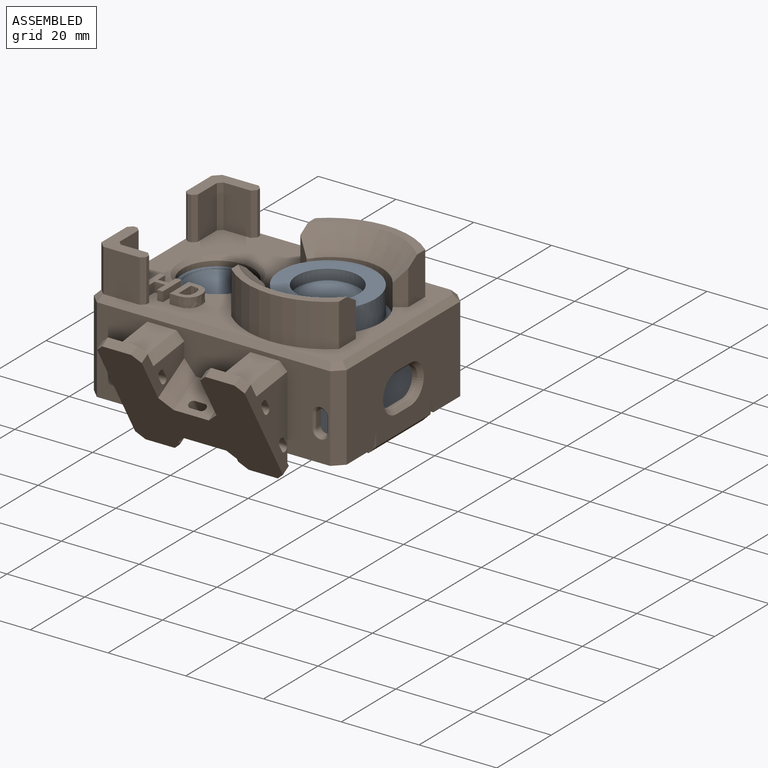
[diagram: assembled view]
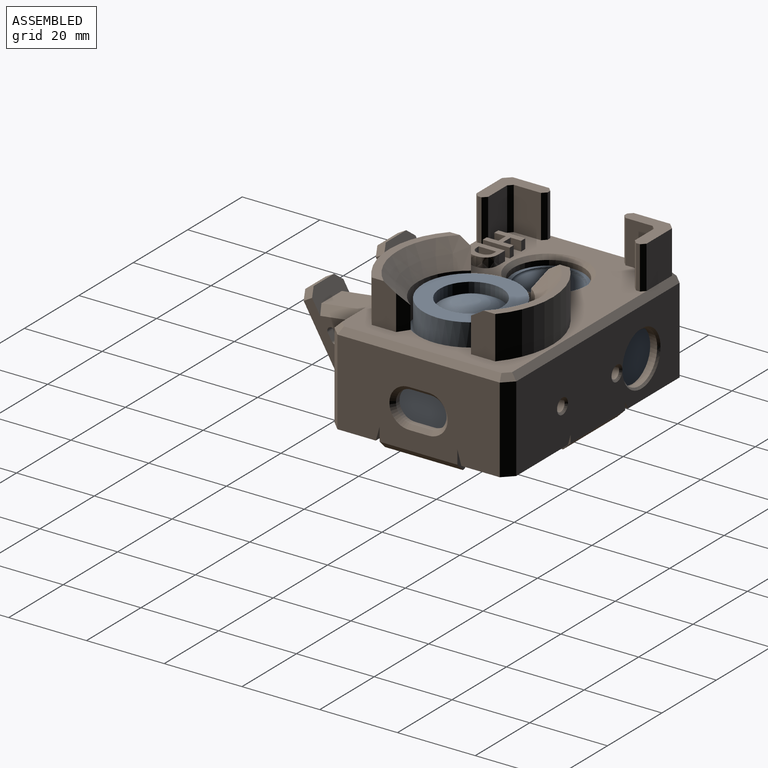
[diagram: assembled view, second angle]
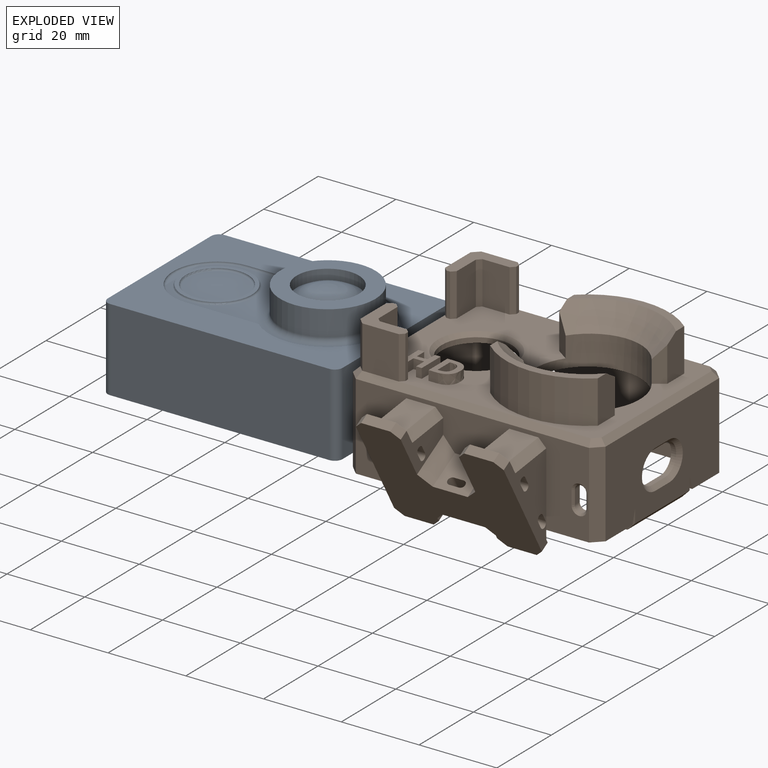
[diagram: exploded view]
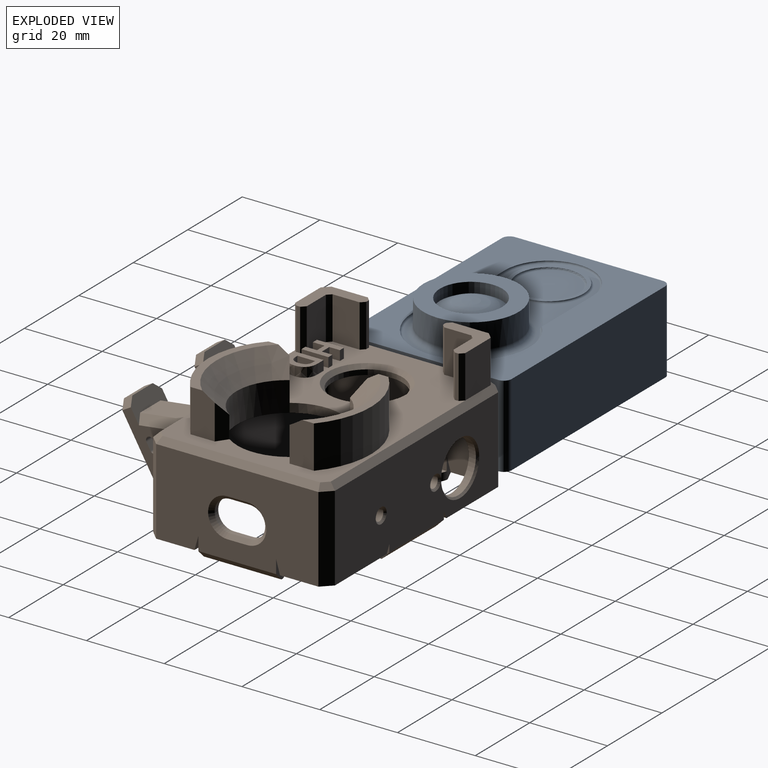
[diagram: exploded view, second angle]
ASSEMBLY  parts=2 mates=3
PART A: 26 faces, bbox 60.4x28.7x42 mm
  f0: plane 60.4x42mm, normal (0,-1,0), area 1288.9mm2, adj f1,f2,f3,f4,f6,f7,f8,f9
  f1: plane 38x21.2mm, normal (-1,0,0), area 805.6mm2, adj f0,f5,f6,f9
  f2: plane 56.4x21.2mm, normal (0,0,-1), area 1195.7mm2, adj f0,f5,f6,f7
  f3: plane 38x21.2mm, normal (1,0,0), area 805.6mm2, adj f0,f5,f7,f8
  f4: plane 56.4x21.2mm, normal (0,0,1), area 1195.7mm2, adj f0,f5,f8,f9
  f5: plane 60.4x42mm, normal (0,1,0), area 2533.4mm2, adj f1,f2,f3,f4,f6,f7,f8,f9
  f6: cylinder r=2mm len=21.2mm, axis (0,1,0), area 66.6mm2, adj f0,f1,f2,f5
  f7: cylinder r=2mm len=21.2mm, axis (0,-1,0), area 66.6mm2, adj f0,f2,f3,f5
  f8: cylinder r=2mm len=21.2mm, axis (0,1,0), area 66.6mm2, adj f0,f3,f4,f5
  f9: cylinder r=2mm len=21.2mm, axis (0,-1,0), area 66.6mm2, adj f0,f1,f4,f5
  f10: cylinder r=12.25mm len=24.5mm, axis (0,-1,0), area 500.3mm2, adj f14,f17
  f11: plane 53.75x29mm, normal (0,-1,0), area 297.2mm2, adj f17,f18,f19,f20,f21,f22,f23,f24
  f12: plane 18x18mm, normal (0,-1,0), area 53.4mm2, adj f18,f25
  f13: plane 15x15mm, normal (0,-1,0), area 176.7mm2, adj f25
  f14: plane 24.5x24.5mm, normal (0,-1,0), area 270.4mm2, adj f10,f16
  f15: sphere r=15mm, area 217.8mm2, adj f16
  f16: cylinder r=8mm len=16mm, axis (0,1,0), area 141.3mm2, adj f14,f15
  f17: torus R=13.75mm, axis (0,-1,0), area 189.4mm2, adj f10,f11
  f18: torus R=9.5mm, axis (0,-1,0), area 45.3mm2, adj f11,f12
  f19: torus R=10.75mm, axis (0,-1,0), area 27.3mm2, adj f0,f11,f20,f21
  f20: cylinder r=0.5mm len=18.39mm, axis (1,0,0), area 14.4mm2, adj f0,f11,f19,f22
  f21: cylinder r=0.5mm len=18.39mm, axis (-1,0,0), area 14.4mm2, adj f0,f11,f19,f23
  f22: torus R=1mm, axis (0,-1,0), area 0.4mm2, adj f0,f11,f20,f24
  f23: torus R=1mm, axis (0,-1,0), area 0.4mm2, adj f0,f11,f21,f24
  f24: torus R=14.5mm, axis (0,-1,0), area 53.1mm2, adj f0,f11,f22,f23
  f25: torus R=7.5mm, axis (0,-1,0), area 38.6mm2, adj f12,f13
PART B: 212 faces, bbox 65x63.4x40.6 mm
  f0: plane 16.76x1.73mm, normal (0,0.87,0.5), area 33.5mm2, adj f138,f141,f143,f208
  f1: plane 38x3.13mm, normal (0,0.5,-0.87), area 31.8mm2, adj f20,f133,f142,f143,f189,f190,f199,f200
  f2: plane 11.5x1.73mm, normal (0,-0.87,-0.5), area 23mm2, adj f3,f5,f143,f176
  f3: cylinder r=1mm len=11.5mm, axis (-1,0,0), area 36.1mm2, adj f2,f4,f143,f176
  f4: plane 11.5x1.73mm, normal (0,0.87,0.5), area 23mm2, adj f3,f5,f143,f176
  f5: cylinder r=1mm len=11.5mm, axis (-1,0,0), area 36.1mm2, adj f2,f4,f143,f176
  f6: plane 60x22mm, normal (0,1,0), area 1138.9mm2, adj f8,f10,f39,f42,f65,f66,f67,f74
  f7: plane 0.3x0.02mm, normal (0,0,-1), area 0mm2, adj f9,f160,f161
  f8: plane 21.5x12.38mm, normal (0,0,-1), area 70mm2, adj f6,f9,f14,f16,f36,f39,f170,f172
  f9: plane 57.4x21.2mm, normal (0,-1,0), area 1068mm2, adj f7,f8,f10,f11,f32,f35,f36,f50
  f10: plane 21.5x12.38mm, normal (0,0,-1), area 70mm2, adj f6,f9,f15,f17,f35,f42,f168,f173
  f11: plane 0.3x0.02mm, normal (0,0,-1), area 0mm2, adj f9,f158,f159
  f12: plane 0.3x0.02mm, normal (0,0,-1), area 0mm2, adj f16,f148,f149
  f13: plane 0.3x0.02mm, normal (0,0,-1), area 0mm2, adj f17,f154,f155
  f14: plane 41.75x22mm, normal (-1,0,0), area 915mm2, adj f8,f20,f39,f40,f70,f145,f149,f167
  f15: plane 41.75x22mm, normal (1,0,0), area 786.5mm2, adj f10,f20,f41,f42,f61,f62,f63,f64
  f16: plane 39.15x21.2mm, normal (1,0,0), area 826.5mm2, adj f8,f12,f19,f20,f32,f36,f38,f144
  f17: plane 39.15x21.2mm, normal (-1,0,0), area 736.2mm2, adj f10,f13,f18,f20,f32,f35,f37,f53
  f18: plane 0.3x0.02mm, normal (0,0,-1), area 0mm2, adj f17,f152,f153
  f19: plane 0.3x0.02mm, normal (0,0,-1), area 0mm2, adj f16,f145,f146
  f20: plane 65x12.38mm, normal (0,0,-1), area 190.6mm2, adj f1,f14,f15,f16,f17,f30,f31,f37
  f21: plane 62x43.75mm, normal (0,0,1), area 1183.6mm2, adj f24,f25,f26,f27,f33,f43,f44,f45
  f22: plane 28x8.15mm, normal (0,0,1), area 62mm2, adj f25,f29,f45,f46
  f23: plane 28x8.15mm, normal (0,0,1), area 62mm2, adj f26,f28,f47,f48
  f24: plane 9.2x3.2mm, normal (-0.57,0.82,0), area 28.2mm2, adj f21,f29,f33,f46
  f25: cylinder r=21mm len=28mm, axis (0,0,-1), area 337.2mm2, adj f21,f22,f45,f46
  f26: cylinder r=21mm len=28mm, axis (0,0,-1), area 337.2mm2, adj f21,f23,f47,f48
  f27: plane 9.2x3.2mm, normal (-0.57,-0.82,0), area 28.2mm2, adj f21,f28,f33,f48
  f28: cone r=0mm half-angle=45deg, axis (0,0,1), area 235.7mm2, adj f23,f27,f33,f44,f47,f48
  f29: cone r=0mm half-angle=45deg, axis (0,0,1), area 235.7mm2, adj f22,f24,f33,f43,f45,f46
  f30: plane 60x22mm, normal (0,-1,0), area 635.4mm2, adj f20,f40,f41,f69,f76,f77,f78,f79
  f31: plane 57.4x21.2mm, normal (0,1,0), area 1200.7mm2, adj f20,f32,f37,f38,f57,f58,f60
  f32: plane 60.4x42.15mm, normal (0,0,-1), area 1716.9mm2, adj f9,f16,f17,f31,f33,f34,f35,f36
  f33: cylinder r=13.5mm len=27mm, axis (0,0,-1), area 480.2mm2, adj f21,f24,f27,f28,f29,f32,f43,f44
  f34: cylinder r=9mm len=18mm, axis (0,0,-1), area 73.5mm2, adj f32,f49
  f35: cylinder r=1.5mm len=21.2mm, axis (0,0,-1), area 50mm2, adj f9,f10,f17,f32
  f36: cylinder r=1.5mm len=21.2mm, axis (0,0,1), area 50mm2, adj f8,f9,f16,f32
  f37: cylinder r=1.5mm len=21.2mm, axis (0,0,1), area 48.5mm2, adj f17,f20,f31,f32,f58,f59,f60
  f38: cylinder r=1.5mm len=21.2mm, axis (0,0,-1), area 50mm2, adj f16,f20,f31,f32
  f39: plane 22x2.5mm, normal (-0.71,0.71,0), area 77.8mm2, adj f6,f8,f14,f72
  f40: plane 22x2.5mm, normal (-0.71,-0.71,0), area 77.8mm2, adj f14,f20,f30,f68
  f41: plane 22x2.5mm, normal (0.71,-0.71,0), area 77.8mm2, adj f15,f20,f30,f71
  f42: plane 22x2.5mm, normal (0.71,0.71,0), area 77.8mm2, adj f6,f10,f15,f75
  f43: plane 8.99x2.69mm, normal (0.57,0.82,0), area 24.1mm2, adj f21,f29,f33,f45
  f44: plane 8.99x2.69mm, normal (0.57,-0.82,0), area 24.1mm2, adj f21,f28,f33,f47
  f45: plane 11x6.25mm, normal (1,0,0), area 65.4mm2, adj f21,f22,f25,f29,f43
  f46: plane 11x5.45mm, normal (-1,0,0), area 57.3mm2, adj f21,f22,f24,f25,f29
  f47: plane 11x6.25mm, normal (1,0,0), area 65.4mm2, adj f21,f23,f26,f28,f44
  f48: plane 11x5.45mm, normal (-1,0,0), area 57.3mm2, adj f21,f23,f26,f27,f28
  f49: cone r=10mm half-angle=45deg, axis (0,0,1), area 84.4mm2, adj f21,f34
  f50: cylinder r=1.5mm len=3mm, axis (0,1,0), area 17mm2, adj f9,f65
  f51: cylinder r=1.5mm len=3mm, axis (0,1,0), area 17mm2, adj f9,f66
  f52: cylinder r=6.5mm len=13mm, axis (0,1,0), area 73.5mm2, adj f9,f67
  f53: plane 5x1.3mm, normal (0,0,1), area 6.5mm2, adj f17,f54,f56,f61
  f54: cylinder r=4mm len=8mm, axis (1,0,0), area 16.3mm2, adj f17,f53,f55,f63
  f55: plane 5x1.3mm, normal (0,0,-1), area 6.5mm2, adj f17,f54,f56,f64
  f56: cylinder r=4mm len=8mm, axis (1,0,0), area 16.3mm2, adj f17,f53,f55,f62
  f57: plane 3.5x1.8mm, normal (1,0,0), area 6.3mm2, adj f31,f58,f60,f78
  f58: cylinder r=1.5mm len=3mm, axis (0,-1,0), area 8.5mm2, adj f31,f37,f57,f59,f76
  f59: plane 3.5x1.83mm, normal (-1,0,0), area 6.4mm2, adj f37,f58,f60,f77
  f60: cylinder r=1.5mm len=3mm, axis (0,-1,0), area 8.5mm2, adj f31,f37,f57,f59,f79
  f61: plane 5x1mm, normal (0.71,0,0.71), area 7.1mm2, adj f15,f53,f62,f63
  f62: cone r=4mm half-angle=45deg, axis (1,0,0), area 20mm2, adj f15,f56,f61,f64
  f63: cone r=4mm half-angle=45deg, axis (1,0,0), area 20mm2, adj f15,f54,f61,f64
  f64: plane 5x1mm, normal (0.71,0,-0.71), area 7.1mm2, adj f15,f55,f62,f63
  f65: cone r=1.5mm half-angle=45deg, axis (0,1,0), area 7.8mm2, adj f6,f50
  f66: cone r=1.5mm half-angle=45deg, axis (0,1,0), area 7.8mm2, adj f6,f51
  f67: cone r=6.5mm half-angle=45deg, axis (0,1,0), area 30mm2, adj f6,f52
  f68: plane 3.12x3.12mm, normal (-0.5,-0.5,0.71), area 6.2mm2, adj f40,f69,f70,f94
  f69: plane 60x1.5mm, normal (0,-0.71,0.71), area 126mm2, adj f21,f30,f68,f71,f88
  f70: plane 41.75x1.5mm, normal (-0.71,0,0.71), area 87.2mm2, adj f14,f21,f68,f72,f83,f93
  f71: plane 3.12x3.12mm, normal (0.5,-0.5,0.71), area 6.2mm2, adj f21,f41,f69,f73
  f72: plane 3.12x3.12mm, normal (-0.5,0.5,0.71), area 6.2mm2, adj f39,f70,f74,f82
  f73: plane 41.75x1.5mm, normal (0.71,0,0.71), area 87.2mm2, adj f15,f21,f71,f75
  f74: plane 60x1.5mm, normal (0,0.71,0.71), area 126mm2, adj f6,f21,f72,f75,f81
  f75: plane 3.12x3.12mm, normal (0.5,0.5,0.71), area 6.2mm2, adj f21,f42,f73,f74
  f76: cone r=1.5mm half-angle=45deg, axis (0,-1,0), area 3.9mm2, adj f30,f58,f77,f78
  f77: plane 3.5x0.5mm, normal (-0.71,-0.71,0), area 2.5mm2, adj f30,f59,f76,f79
  f78: plane 3.5x0.5mm, normal (0.71,-0.71,0), area 2.5mm2, adj f30,f57,f76,f79
  f79: cone r=1.5mm half-angle=45deg, axis (0,-1,0), area 3.9mm2, adj f30,f60,f77,f78
  f80: plane 11x1mm, normal (1,0,0), area 11mm2, adj f21,f87,f100,f105
  f81: plane 11x9.38mm, normal (0,1,0), area 103.2mm2, adj f74,f82,f87,f105
  f82: plane 11x1.62mm, normal (-0.71,0.71,0), area 25.2mm2, adj f72,f81,f83,f87
  f83: plane 11x9.38mm, normal (-1,0,0), area 103.2mm2, adj f70,f82,f87,f102
  f84: plane 11x1mm, normal (0,-1,0), area 11mm2, adj f21,f87,f101,f102
  f85: plane 11x7mm, normal (1,0,0), area 77mm2, adj f21,f87,f97,f101
  f86: plane 11x7mm, normal (0,-1,0), area 77mm2, adj f21,f87,f97,f100
  f87: plane 12x12mm, normal (0,0,1), area 60.2mm2, adj f80,f81,f82,f83,f84,f85,f86,f97
  f88: plane 11x9.38mm, normal (0,-1,0), area 103.2mm2, adj f69,f94,f95,f104
  f89: plane 11x1mm, normal (1,0,0), area 11mm2, adj f21,f95,f98,f104
  f90: plane 11x7mm, normal (0,1,0), area 77mm2, adj f21,f95,f96,f98
  f91: plane 11x7mm, normal (1,0,0), area 77mm2, adj f21,f95,f96,f99
  f92: plane 11x1mm, normal (0,1,0), area 11mm2, adj f21,f95,f99,f103
  f93: plane 11x9.38mm, normal (-1,0,0), area 103.2mm2, adj f70,f94,f95,f103
  f94: plane 11x1.62mm, normal (-0.71,-0.71,0), area 25.2mm2, adj f68,f88,f93,f95
  f95: plane 12x12mm, normal (0,0,1), area 60.2mm2, adj f88,f89,f90,f91,f92,f93,f94,f96
  f96: plane 11x1mm, normal (0.71,0.71,0), area 15.6mm2, adj f21,f90,f91,f95
  f97: plane 11x1mm, normal (0.71,-0.71,0), area 15.6mm2, adj f21,f85,f86,f87
  f98: plane 11x1mm, normal (0.71,0.71,0), area 15.6mm2, adj f21,f89,f90,f95
  f99: plane 11x1mm, normal (0.71,0.71,0), area 15.6mm2, adj f21,f91,f92,f95
  f100: plane 11x1mm, normal (0.71,-0.71,0), area 15.6mm2, adj f21,f80,f86,f87
  f101: plane 11x1mm, normal (0.71,-0.71,0), area 15.6mm2, adj f21,f84,f85,f87
  f102: plane 11x1mm, normal (-0.71,-0.71,0), area 15.6mm2, adj f21,f83,f84,f87
  f103: plane 11x1mm, normal (-0.71,0.71,0), area 15.6mm2, adj f21,f92,f93,f95
  f104: plane 11x1mm, normal (0.71,-0.71,0), area 15.6mm2, adj f21,f88,f89,f95
  f105: plane 11x1mm, normal (0.71,0.71,0), area 15.6mm2, adj f21,f80,f81,f87
  f106: plane 6.94x2.5mm, normal (1,0,0), area 17.4mm2, adj f21,f107,f117,f118
  f107: plane 2.5x1.47mm, normal (0,1,0), area 3.7mm2, adj f21,f106,f108,f118
  f108: plane 2.72x2.5mm, normal (-1,0,0), area 6.8mm2, adj f21,f107,f109,f118
  f109: plane 2.75x2.5mm, normal (0,1,0), area 6.9mm2, adj f21,f108,f110,f118
  f110: plane 2.72x2.5mm, normal (1,0,0), area 6.8mm2, adj f21,f109,f111,f118
  f111: plane 2.5x1.47mm, normal (0,1,0), area 3.7mm2, adj f21,f110,f112,f118
  f112: plane 6.94x2.5mm, normal (-1,0,0), area 17.4mm2, adj f21,f111,f113,f118
  f113: plane 2.5x1.47mm, normal (0,-1,0), area 3.7mm2, adj f21,f112,f114,f118
  f114: plane 3x2.5mm, normal (1,0,0), area 7.5mm2, adj f21,f113,f115,f118
  f115: plane 2.75x2.5mm, normal (0,-1,0), area 6.9mm2, adj f21,f114,f116,f118
  f116: plane 3x2.5mm, normal (-1,0,0), area 7.5mm2, adj f21,f115,f117,f118
  f117: plane 2.5x1.47mm, normal (0,-1,0), area 3.7mm2, adj f21,f106,f116,f118
  f118: plane 6.94x5.69mm, normal (0,0,1), area 23.8mm2, adj f106,f107,f108,f109,f110,f111,f112,f113
  f119: extruded ~2.51x2.5mm, area 6.9mm2, adj f21,f120,f130,f131
  f120: extruded ~2.64x2.5mm, area 7.1mm2, adj f21,f119,f121,f131
  f121: plane 2.5x2.18mm, normal (0,1,0), area 5.4mm2, adj f21,f120,f122,f131
  f122: plane 6.94x2.5mm, normal (-1,0,0), area 17.4mm2, adj f21,f121,f123,f131
  f123: plane 2.5x1.97mm, normal (0,-1,0), area 4.9mm2, adj f21,f122,f124,f131
  f124: extruded ~2.82x2.5mm, area 7.6mm2, adj f21,f123,f130,f131
  f125: extruded ~2.5x2.28mm, area 9mm2, adj f126,f129,f131,f132
  f126: plane 2.5x0.63mm, normal (0,1,0), area 1.6mm2, adj f125,f127,f131,f132
  f127: plane 4.52x2.5mm, normal (1,0,0), area 11.3mm2, adj f126,f128,f131,f132
  f128: plane 2.5x0.78mm, normal (0,-1,0), area 2mm2, adj f127,f129,f131,f132
  f129: extruded ~2.5x2.24mm, area 8.6mm2, adj f125,f128,f131,f132
  f130: extruded ~2.63x2.5mm, area 7.2mm2, adj f21,f119,f124,f131
  f131: plane 6.94x5.76mm, normal (0,0,1), area 24.5mm2, adj f119,f120,f121,f122,f123,f124,f125,f126
  f132: plane 4.52x2.76mm, normal (0,0,1), area 10.9mm2, adj f125,f126,f127,f128,f129
  f133: plane 38x27.71mm, normal (0,-0.87,-0.5), area 883mm2, adj f1,f142,f143,f174,f175,f176,f177,f179
  f134: plane 11.5x1.73mm, normal (0,-0.87,-0.5), area 23mm2, adj f135,f140,f142,f175
  f135: cylinder r=1mm len=11.5mm, axis (-1,0,0), area 36.1mm2, adj f134,f136,f142,f175
  f136: plane 11.5x1.73mm, normal (0,0.87,0.5), area 23mm2, adj f135,f140,f142,f175
  f137: plane 38x1.73mm, normal (0,-0.87,-0.5), area 76mm2, adj f138,f141,f142,f143
  f138: cylinder r=1mm len=38mm, axis (-1,0,0), area 112.3mm2, adj f0,f137,f139,f142,f143,f207,f208,f210
  f139: plane 16.76x1.73mm, normal (0,0.87,0.5), area 33.5mm2, adj f138,f141,f142,f210
  f140: cylinder r=1mm len=11.5mm, axis (-1,0,0), area 36.1mm2, adj f134,f136,f142,f175
  f141: cylinder r=1mm len=38mm, axis (-1,0,0), area 112.3mm2, adj f0,f137,f139,f142,f143,f208,f210,f211
  f142: plane 25.5x16.17mm, normal (1,0,0), area 176.2mm2, adj f1,f30,f133,f134,f135,f136,f137,f138
  f143: plane 25.5x16.17mm, normal (-1,0,0), area 176.2mm2, adj f0,f1,f2,f3,f4,f5,f30,f133
  f144: plane 19.97x2.7mm, normal (0,0,1), area 50.1mm2, adj f16,f146,f147,f148
  f145: plane 5.5x2.3mm, normal (0,1,0), area 10.1mm2, adj f14,f16,f19,f146,f167,f170
  f146: cylinder r=3mm len=3mm, axis (0,0,1), area 9.4mm2, adj f19,f144,f145,f147,f150
  f147: plane 14x2mm, normal (1,0,0), area 28mm2, adj f144,f146,f148,f150
  f148: cylinder r=3mm len=3mm, axis (0,0,1), area 9.4mm2, adj f12,f144,f147,f149,f150
  f149: plane 5.5x2.3mm, normal (0,-1,0), area 10mm2, adj f12,f14,f16,f148,f167,f171
  f150: plane 20x3mm, normal (0,0,-1), area 56.1mm2, adj f146,f147,f148,f167
  f151: plane 14x2mm, normal (-1,0,0), area 28mm2, adj f152,f155,f156,f157
  f152: cylinder r=3mm len=3mm, axis (0,0,1), area 9.4mm2, adj f18,f151,f153,f156,f157
  f153: plane 5.5x2.3mm, normal (0,1,0), area 10mm2, adj f15,f17,f18,f152,f165,f168
  f154: plane 5.5x2.3mm, normal (0,-1,0), area 10.1mm2, adj f13,f15,f17,f155,f165,f169
  f155: cylinder r=3mm len=3mm, axis (0,0,1), area 9.4mm2, adj f13,f151,f154,f156,f157
  f156: plane 20x3mm, normal (0,0,-1), area 56.1mm2, adj f151,f152,f155,f165
  f157: plane 19.97x2.7mm, normal (0,0,1), area 50.1mm2, adj f17,f151,f152,f155
  f158: cylinder r=3mm len=3mm, axis (0,0,1), area 9.4mm2, adj f11,f159,f162,f163,f164
  f159: plane 4x2.3mm, normal (-1,0,0), area 6.6mm2, adj f6,f9,f11,f158,f166,f172
  f160: plane 4x2.3mm, normal (1,0,0), area 6.6mm2, adj f6,f7,f9,f161,f166,f173
  f161: cylinder r=3mm len=3mm, axis (0,0,1), area 9.4mm2, adj f7,f160,f162,f163,f164
  f162: plane 14x2mm, normal (0,-1,0), area 28mm2, adj f158,f161,f163,f164
  f163: plane 20x3mm, normal (0,0,-1), area 56.1mm2, adj f158,f161,f162,f166
  f164: plane 19.97x2.7mm, normal (0,0,1), area 50.1mm2, adj f9,f158,f161,f162
  f165: plane 20x2mm, normal (0.71,0,-0.71), area 56.6mm2, adj f15,f153,f154,f156
  f166: plane 20x2mm, normal (0,0.71,-0.71), area 56.6mm2, adj f6,f159,f160,f163
  f167: plane 20x2mm, normal (-0.71,0,-0.71), area 56.6mm2, adj f14,f145,f149,f150
  f168: plane 3.5x2.3mm, normal (0,-0.96,-0.27), area 8.4mm2, adj f10,f15,f17,f153
  f169: plane 3.5x2.3mm, normal (0,0.96,-0.27), area 8.4mm2, adj f15,f17,f20,f154
  f170: plane 3.5x2.3mm, normal (0,-0.96,-0.27), area 8.4mm2, adj f8,f14,f16,f145
  f171: plane 3.5x2.3mm, normal (0,0.96,-0.27), area 8.4mm2, adj f14,f16,f20,f149
  f172: plane 2.3x2mm, normal (0.89,0,-0.45), area 5.1mm2, adj f6,f8,f9,f159
  f173: plane 2.3x2mm, normal (-0.89,0,-0.45), area 5.1mm2, adj f6,f9,f10,f160
  f174: plane 9x8.13mm, normal (0,-0.5,0.87), area 76.3mm2, adj f30,f133,f205,f206,f208,f209,f210,f211
  f175: plane 15.63x11.64mm, normal (-1,0,0), area 79.1mm2, adj f30,f133,f134,f135,f136,f140,f185,f193
  f176: plane 15.63x11.64mm, normal (1,0,0), area 79.1mm2, adj f2,f3,f4,f5,f30,f133,f184,f192
  f177: plane 7.5x2.17mm, normal (0,0.5,-0.87), area 18.8mm2, adj f133,f178,f203,f204
  f178: plane 11.5x2.6mm, normal (0,0.87,0.5), area 30.5mm2, adj f143,f177,f179,f190,f203,f204
  f179: plane 2.67x2.12mm, normal (1,0,0), area 2.5mm2, adj f133,f178,f199,f203
  f180: plane 7.5x2.17mm, normal (0,0.5,-0.87), area 18.8mm2, adj f133,f181,f201,f202
  f181: plane 11.5x2.6mm, normal (0,0.87,0.5), area 30.5mm2, adj f142,f180,f182,f189,f201,f202
  f182: plane 2.67x2.12mm, normal (-1,0,0), area 2.5mm2, adj f133,f181,f200,f202
  f183: plane 7.5x2.17mm, normal (0,-0.5,0.87), area 18.8mm2, adj f133,f184,f197,f198
  f184: plane 11.5x5.34mm, normal (0,0.87,0.5), area 46.3mm2, adj f143,f176,f183,f188,f191,f192,f197,f198
  f185: plane 11.5x5.34mm, normal (0,0.87,0.5), area 46.3mm2, adj f142,f175,f186,f187,f193,f194,f195,f196
  f186: plane 7.5x2.17mm, normal (0,-0.5,0.87), area 18.8mm2, adj f133,f185,f195,f196
  f187: plane 12.46x7.5mm, normal (0,-0.13,0.99), area 94.2mm2, adj f30,f185,f193,f194
  f188: plane 12.46x7.5mm, normal (0,-0.13,0.99), area 94.2mm2, adj f30,f184,f191,f192
  f189: plane 13.5x2.28mm, normal (0,1,0.02), area 28.5mm2, adj f1,f142,f181,f200
  f190: plane 13.5x2.28mm, normal (0,1,0.02), area 28.5mm2, adj f1,f143,f178,f199
  f191: plane 12.46x3.49mm, normal (-0.71,-0.09,0.7), area 34mm2, adj f30,f143,f184,f188
  f192: plane 12.46x3.49mm, normal (0.71,-0.09,0.7), area 34mm2, adj f30,f176,f184,f188
  f193: plane 12.46x3.49mm, normal (-0.71,-0.09,0.7), area 34mm2, adj f30,f175,f185,f187
  f194: plane 12.46x3.49mm, normal (0.71,-0.09,0.7), area 34mm2, adj f30,f142,f185,f187
  f195: plane 3.17x2.98mm, normal (0.71,-0.35,0.61), area 7.1mm2, adj f133,f142,f185,f186
  f196: plane 3.17x2.98mm, normal (-0.71,-0.35,0.61), area 7.1mm2, adj f133,f175,f185,f186
  f197: plane 3.17x2.98mm, normal (-0.71,-0.35,0.61), area 7.1mm2, adj f133,f143,f183,f184
  f198: plane 3.17x2.98mm, normal (0.71,-0.35,0.61), area 7.1mm2, adj f133,f176,f183,f184
  f199: plane 3.53x3.17mm, normal (0.71,0.35,-0.61), area 8.6mm2, adj f1,f133,f179,f190
  f200: plane 3.53x3.17mm, normal (-0.71,0.35,-0.61), area 8.6mm2, adj f1,f133,f182,f189
  f201: plane 3.17x2.98mm, normal (0.71,0.35,-0.61), area 7.1mm2, adj f133,f142,f180,f181
  f202: plane 3.17x2.98mm, normal (-0.71,0.35,-0.61), area 7.1mm2, adj f133,f180,f181,f182
  f203: plane 3.17x2.98mm, normal (0.71,0.35,-0.61), area 7.1mm2, adj f133,f177,f178,f179
  f204: plane 3.17x2.98mm, normal (-0.71,0.35,-0.61), area 7.1mm2, adj f133,f143,f177,f178
  f205: plane 9.63x8.16mm, normal (-0.71,-0.35,0.61), area 43.5mm2, adj f30,f133,f174,f175
  f206: plane 9.63x8.16mm, normal (0.71,-0.35,0.61), area 43.5mm2, adj f30,f133,f174,f176
  f207: plane 2.5x0.87mm, normal (0,-0.87,-0.5), area 2.5mm2, adj f1,f138,f208,f210
  f208: cylinder r=1mm len=9.66mm, axis (0,-0.5,0.87), area 25.2mm2, adj f0,f1,f138,f141,f174,f207,f209,f211
  f209: plane 8.66x5mm, normal (0,0.87,0.5), area 25mm2, adj f1,f174,f208,f210
  f210: cylinder r=1mm len=9.66mm, axis (0,-0.5,0.87), area 25.2mm2, adj f1,f138,f139,f141,f174,f207,f209,f211
  f211: plane 4.33x2.5mm, normal (0,-0.87,-0.5), area 12.5mm2, adj f141,f174,f208,f210
PLACE A rot(axis=(-1,0,0),90deg) t=(-135.74,-67.94,1.61)mm
PLACE B t=(-135.74,-46.87,13.36)mm
MATE planar A.f1 <-> B.f16  axis (-1,0,0) through (-165.94,-65.94,12.21)mm
MATE planar A.f12 <-> B.f32  axis (0,0,1) through (-137.76,-46.94,22.81)mm
MATE planar A.f2 <-> B.f31  axis (0,-1,0) through (-135.74,-67.94,12.21)mm
